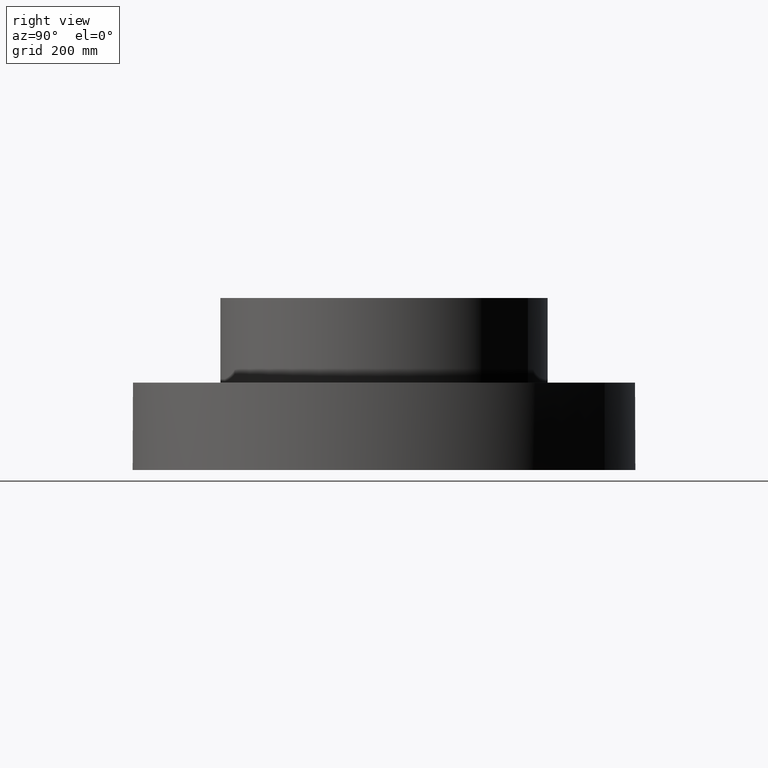
[diagram: clean part render]
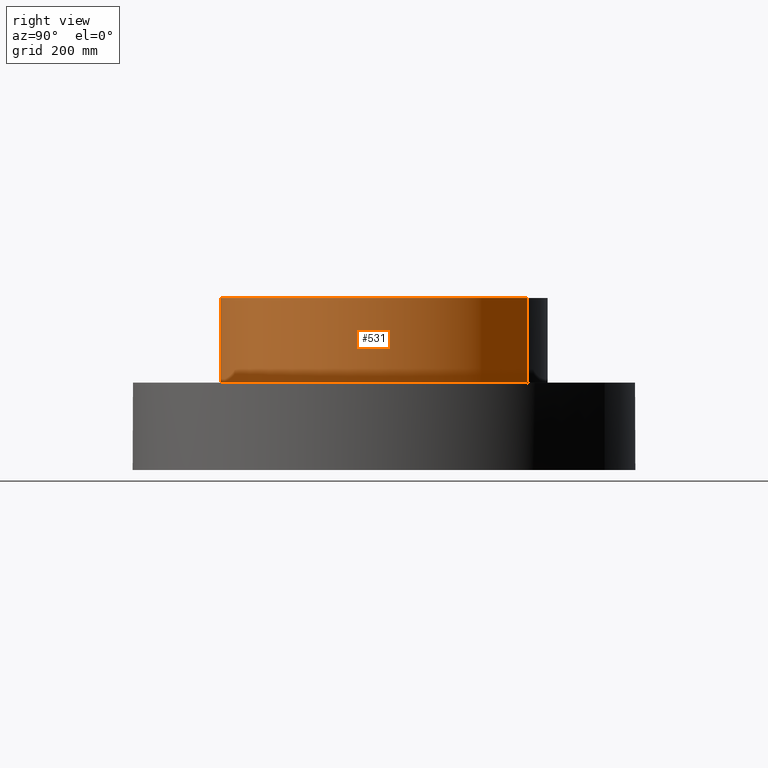
[diagram: same view with one face highlighted and labeled with its STEP entity id]
A machine part, right view. The second image highlights one B-rep face of the part: STEP entity #531.
In plain terms, the highlighted cylindrical surface (partial cylindrical patch) has radius 381 mm, axis along (0, 0, -1).
Its self-contained STEP definition (entity closure, byte-faithful):
#130=AXIS2_PLACEMENT_3D('Circle Axis2P3D',#128,#129,$) ;
#504=AXIS2_PLACEMENT_3D('Cylinder Axis2P3D',#501,#502,#503) ;
#515=AXIS2_PLACEMENT_3D('Circle Axis2P3D',#513,#514,$) ;
#123=CARTESIAN_POINT('Vertex',(-7.19138307909,-13.1637384284,8.00000000003)) ;
#125=CARTESIAN_POINT('Vertex',(7.19138307909,13.1637384284,8.00000000003)) ;
#128=CARTESIAN_POINT('Axis2P3D Location',(0.,0.,8.00000000003)) ;
#501=CARTESIAN_POINT('Axis2P3D Location',(0.,0.,7.75000000003)) ;
#506=CARTESIAN_POINT('Line Origine',(7.19138307909,13.1637384284,11.875)) ;
#510=CARTESIAN_POINT('Vertex',(7.19138307909,13.1637384284,15.7500000001)) ;
#513=CARTESIAN_POINT('Axis2P3D Location',(0.,0.,15.7500000001)) ;
#517=CARTESIAN_POINT('Vertex',(-7.19138307909,-13.1637384284,15.7500000001)) ;
#520=CARTESIAN_POINT('Line Origine',(-7.19138307909,-13.1637384284,11.875)) ;
#129=DIRECTION('Axis2P3D Direction',(0.,0.,-0.0393700787402)) ;
#502=DIRECTION('Axis2P3D Direction',(0.,0.,-0.0393700787402)) ;
#503=DIRECTION('Axis2P3D XDirection',(-0.0188750212049,-0.0345504945626,0.)) ;
#507=DIRECTION('Vector Direction',(0.,0.,-0.0393700787402)) ;
#514=DIRECTION('Axis2P3D Direction',(0.,0.,-0.0393700787402)) ;
#521=DIRECTION('Vector Direction',(0.,0.,-0.0393700787402)) ;
#508=VECTOR('Line Direction',#507,0.0393700787402) ;
#522=VECTOR('Line Direction',#521,0.0393700787402) ;
#526=ORIENTED_EDGE('',*,*,#132,.F.) ;
#527=ORIENTED_EDGE('',*,*,#512,.T.) ;
#528=ORIENTED_EDGE('',*,*,#519,.T.) ;
#529=ORIENTED_EDGE('',*,*,#524,.F.) ;
#531=ADVANCED_FACE('PartBody',(#530),#505,.T.) ;
#131=CIRCLE('generated circle',#130,15.0000000001) ;
#516=CIRCLE('generated circle',#515,15.0000000001) ;
#505=CYLINDRICAL_SURFACE('generated cylinder',#504,15.0000000001) ;
#132=EDGE_CURVE('',#126,#124,#131,.T.) ;
#512=EDGE_CURVE('',#126,#511,#509,.F.) ;
#519=EDGE_CURVE('',#511,#518,#516,.T.) ;
#524=EDGE_CURVE('',#124,#518,#523,.F.) ;
#525=EDGE_LOOP('',(#526,#527,#528,#529)) ;
#530=FACE_OUTER_BOUND('',#525,.T.) ;
#509=LINE('Line',#506,#508) ;
#523=LINE('Line',#520,#522) ;
#124=VERTEX_POINT('',#123) ;
#126=VERTEX_POINT('',#125) ;
#511=VERTEX_POINT('',#510) ;
#518=VERTEX_POINT('',#517) ;